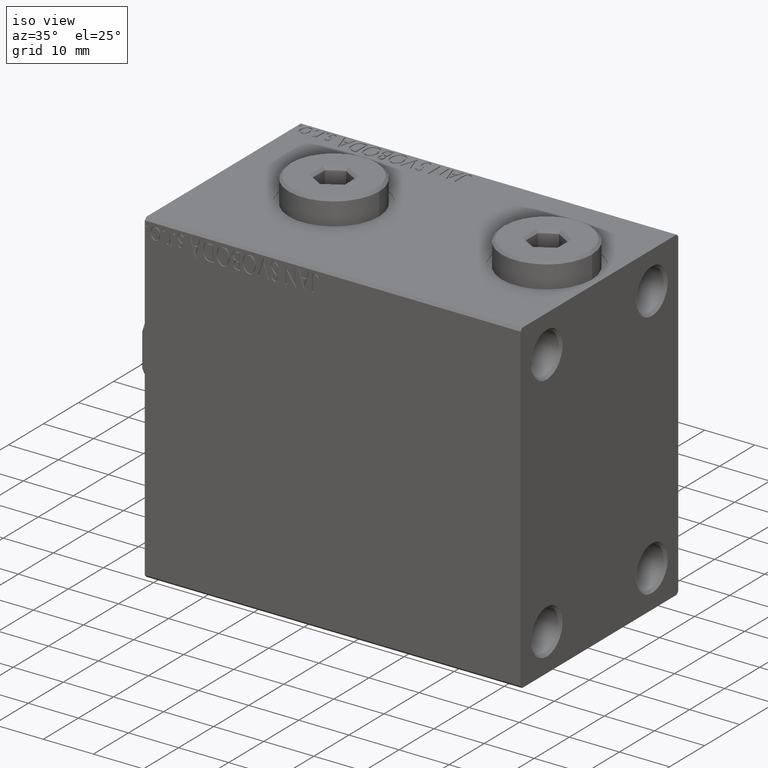
[diagram: clean part render]
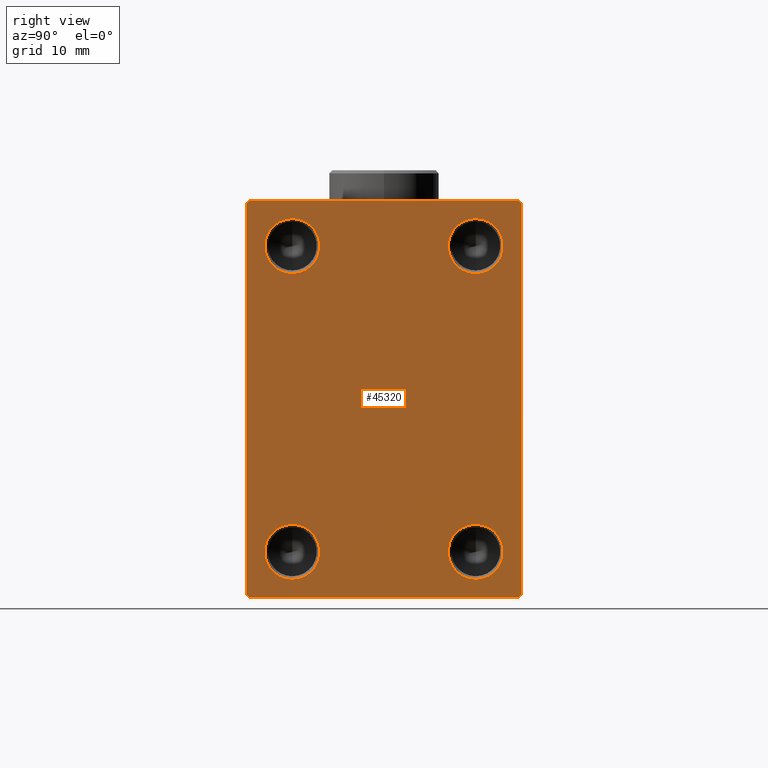
[diagram: tour spotlight — one face highlighted and labeled with its STEP entity id]
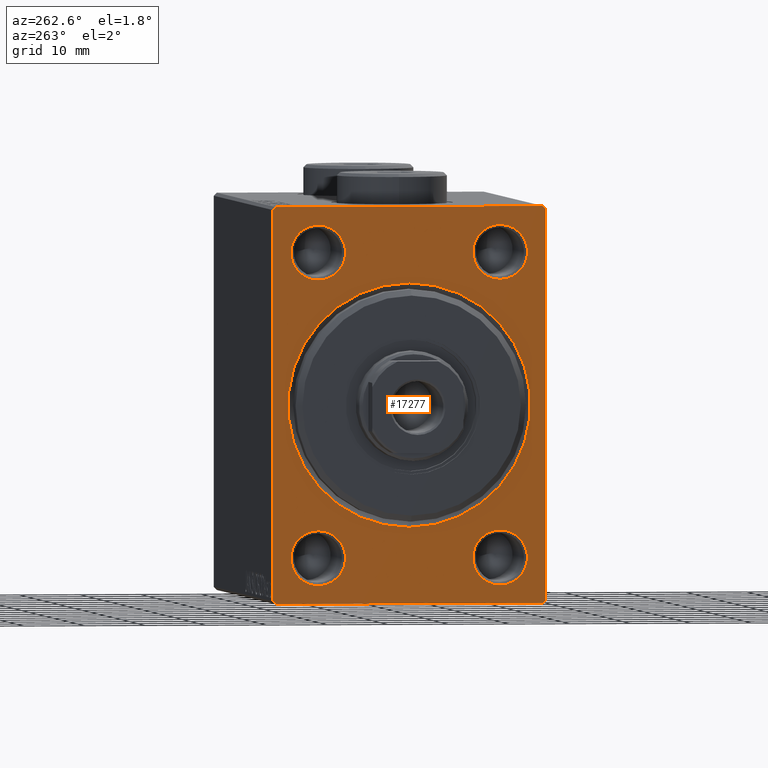
[diagram: tour spotlight — one face highlighted and labeled with its STEP entity id]
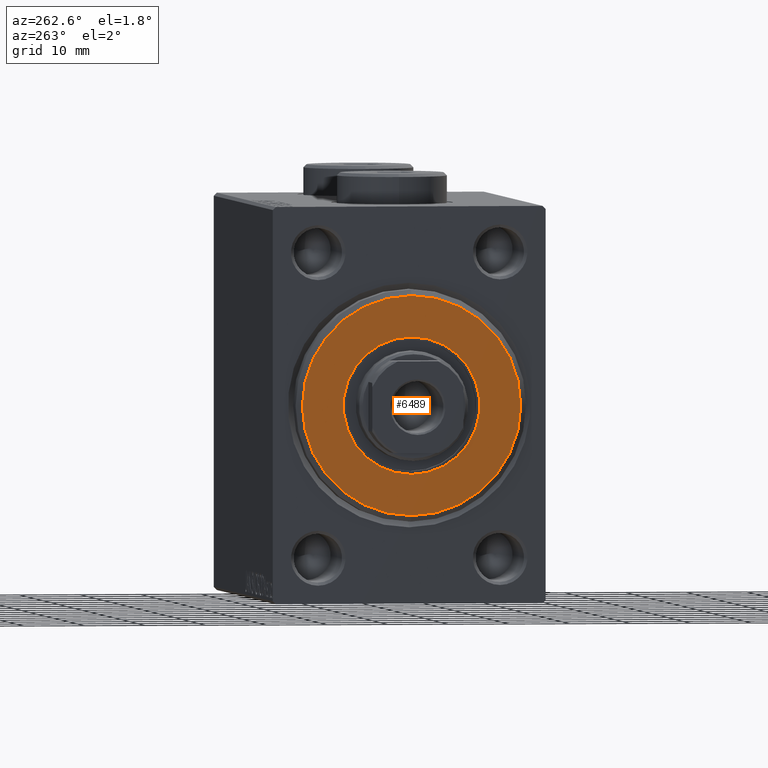
[diagram: tour spotlight — one face highlighted and labeled with its STEP entity id]
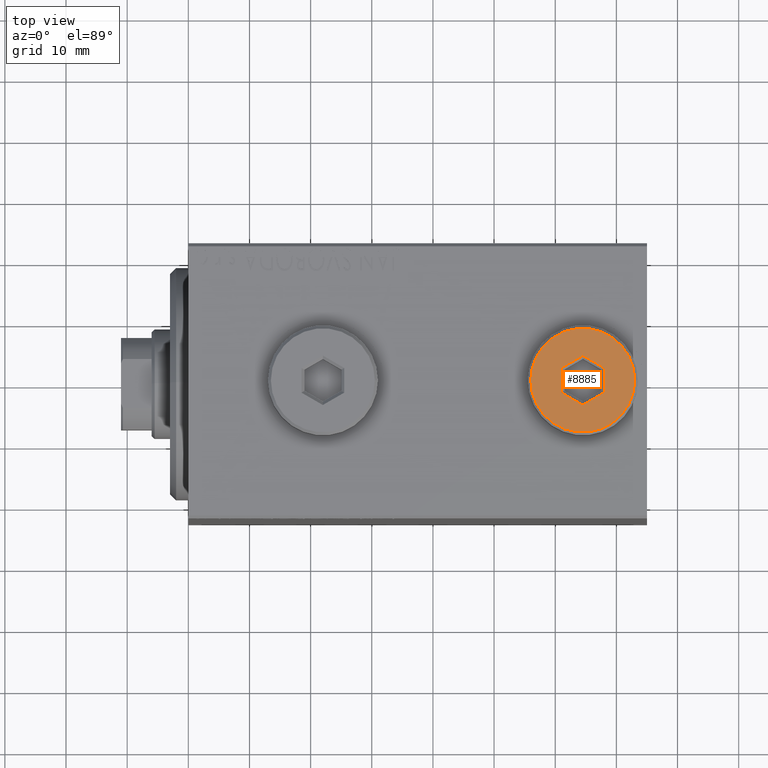
[diagram: tour spotlight — one face highlighted and labeled with its STEP entity id]
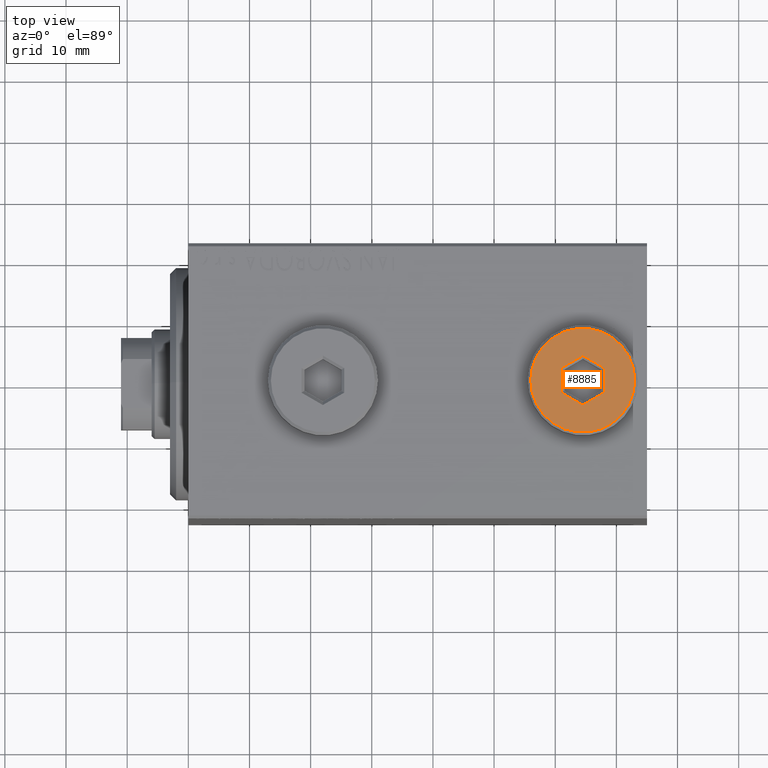
[diagram: tour spotlight — one face highlighted and labeled with its STEP entity id]
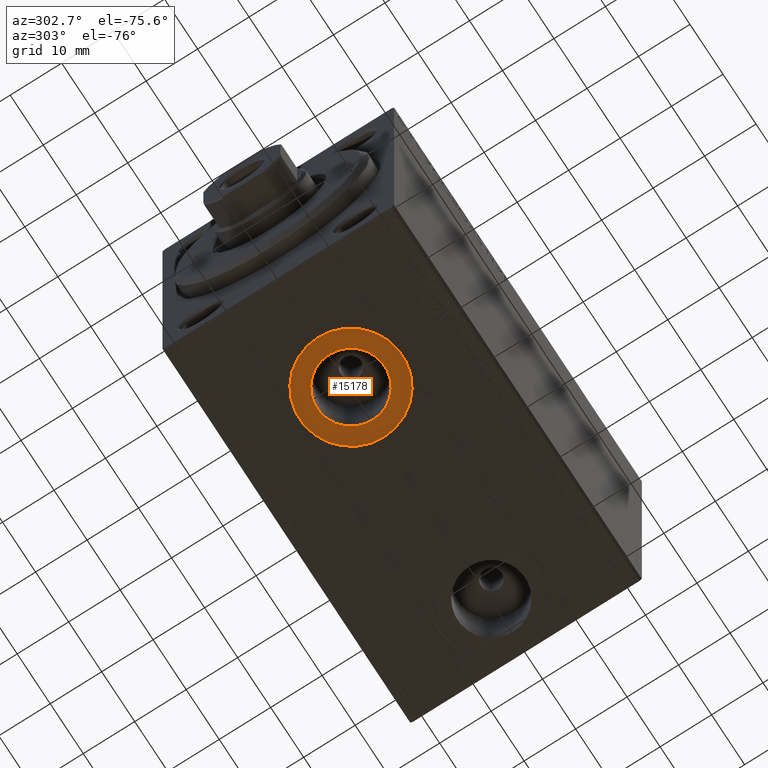
[diagram: tour spotlight — one face highlighted and labeled with its STEP entity id]
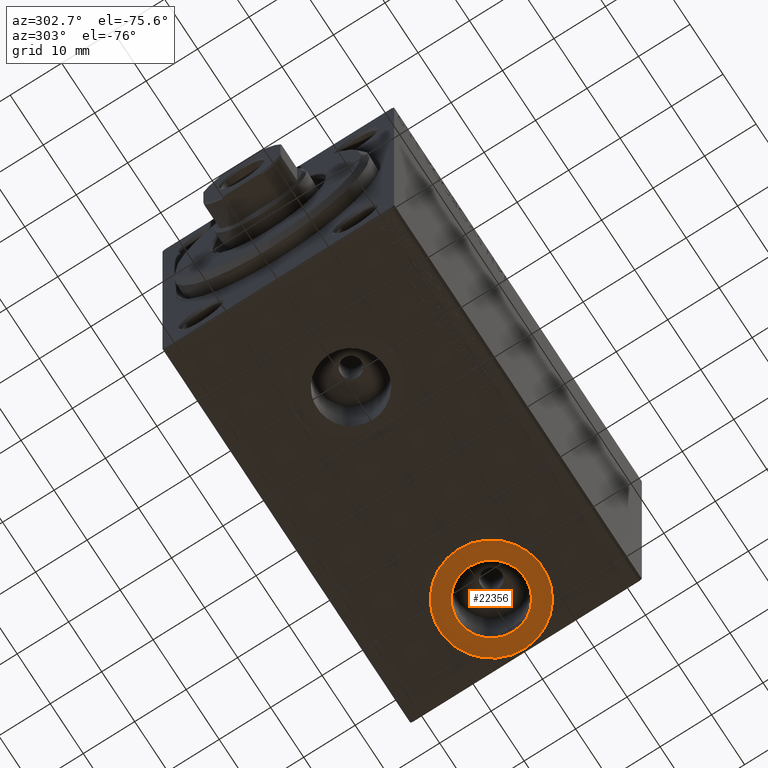
[diagram: tour spotlight — one face highlighted and labeled with its STEP entity id]
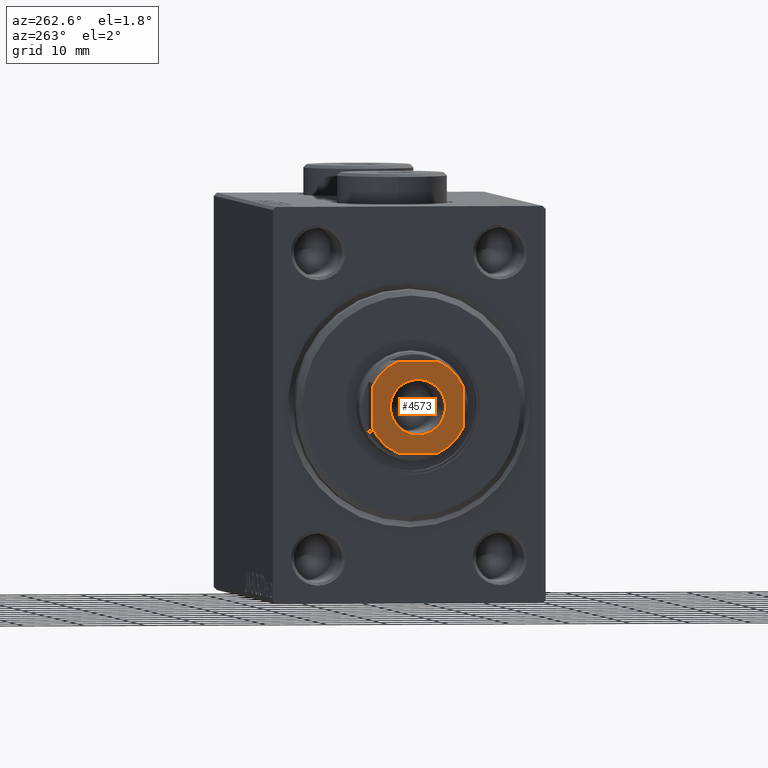
[diagram: tour spotlight — one face highlighted and labeled with its STEP entity id]
A machine part: a face-by-face anatomy tour. The part has 935 B-rep faces; the first image is the clean iso view, then the 8 largest visible faces are spotlighted one at a time (largest first), each with its STEP entity span.

Face 1 — right view, entity #45320. In plain terms, the highlighted planar face has unit normal (1, 0, 0).
Definition (entity closure, byte-faithful):
#220 = LINE ( 'NONE', #42635, #7046 ) ;
#296 = CARTESIAN_POINT ( 'NONE',  ( 75.00000000000000000, 15.00000000000000178, -25.00000000000000000 ) ) ;
#327 = EDGE_LOOP ( 'NONE', ( #19916, #19727, #20350, #24115, #30511, #34439, #5762, #20377 ) ) ;
#532 = CARTESIAN_POINT ( 'NONE',  ( 75.00000000000000000, 15.00000000000000178, 20.49999999999998579 ) ) ;
#587 = AXIS2_PLACEMENT_3D ( 'NONE', #21493, #14580, #17365 ) ;
#998 = DIRECTION ( 'NONE',  ( 0.000000000000000000, 0.000000000000000000, -1.000000000000000000 ) ) ;
#1441 = CARTESIAN_POINT ( 'NONE',  ( 75.00000000000000000, -15.00000000000000000, -25.00000000000000000 ) ) ;
#1638 = CARTESIAN_POINT ( 'NONE',  ( 75.00000000000000000, -27.25000000000015632, -27.24999999999977973 ) ) ;
#2102 = CARTESIAN_POINT ( 'NONE',  ( 75.00000000000000000, -15.00000000000000000, 20.50000000000001776 ) ) ;
#2586 = CARTESIAN_POINT ( 'NONE',  ( 75.00000000000000000, -21.99999999999997868, 32.49999999999998579 ) ) ;
#2688 = VERTEX_POINT ( 'NONE', #31999 ) ;
#2927 = CIRCLE ( 'NONE', #22880, 4.500000000000017764 ) ;
#3093 = LINE ( 'NONE', #17141, #44184 ) ;
#3355 = EDGE_LOOP ( 'NONE', ( #13514, #8745 ) ) ;
#3480 = ORIENTED_EDGE ( 'NONE', *, *, #41630, .F. ) ;
#3988 = FACE_BOUND ( 'NONE', #13575, .T. ) ;
#4278 = LINE ( 'NONE', #7271, #9088 ) ;
#4792 = CARTESIAN_POINT ( 'NONE',  ( 75.00000000000000000, 15.00000000000000178, -20.49999999999998579 ) ) ;
#4814 = VECTOR ( 'NONE', #10726, 1000.000000000000000 ) ;
#4973 = VERTEX_POINT ( 'NONE', #40390 ) ;
#4992 = CIRCLE ( 'NONE', #36652, 4.499999999999990230 ) ;
#5567 = AXIS2_PLACEMENT_3D ( 'NONE', #15856, #39862, #25999 ) ;
#5762 = ORIENTED_EDGE ( 'NONE', *, *, #24552, .T. ) ;
#6866 = CARTESIAN_POINT ( 'NONE',  ( 75.00000000000000000, -22.49999999999999289, 31.99999999999998579 ) ) ;
#6905 = DIRECTION ( 'NONE',  ( 0.000000000000000000, 1.000000000000000000, 0.000000000000000000 ) ) ;
#6988 = PLANE ( 'NONE',  #27925 ) ;
#7046 = VECTOR ( 'NONE', #6905, 1000.000000000000000 ) ;
#7271 = CARTESIAN_POINT ( 'NONE',  ( 75.00000000000000000, 27.24999999999969447, 27.25000000000044764 ) ) ;
#7413 = EDGE_CURVE ( 'NONE', #23906, #36593, #21330, .T. ) ;
#7817 = VERTEX_POINT ( 'NONE', #20054 ) ;
#7891 = DIRECTION ( 'NONE',  ( 0.000000000000000000, -1.000000000000000000, -1.541976423090495633E-16 ) ) ;
#7954 = EDGE_CURVE ( 'NONE', #24303, #23906, #220, .T. ) ;
#8042 = EDGE_CURVE ( 'NONE', #16100, #18061, #12170, .T. ) ;
#8081 = CIRCLE ( 'NONE', #40469, 4.499999999999990230 ) ;
#8200 = DIRECTION ( 'NONE',  ( 0.000000000000000000, -1.067522139062650425E-16, 1.000000000000000000 ) ) ;
#8473 = CARTESIAN_POINT ( 'NONE',  ( 75.00000000000000000, 15.00000000000000178, -29.50000000000001421 ) ) ;
#8745 = ORIENTED_EDGE ( 'NONE', *, *, #40685, .F. ) ;
#9012 = ORIENTED_EDGE ( 'NONE', *, *, #19545, .F. ) ;
#9060 = AXIS2_PLACEMENT_3D ( 'NONE', #296, #39711, #15268 ) ;
#9088 = VECTOR ( 'NONE', #11194, 1000.000000000000000 ) ;
#9231 = LINE ( 'NONE', #1638, #33922 ) ;
#9342 = ORIENTED_EDGE ( 'NONE', *, *, #22247, .F. ) ;
#9397 = CARTESIAN_POINT ( 'NONE',  ( 75.00000000000000000, -22.00000000000000711, -32.50000000000000711 ) ) ;
#10726 = DIRECTION ( 'NONE',  ( -0.000000000000000000, 0.7071067811865378028, 0.7071067811865573427 ) ) ;
#11194 = DIRECTION ( 'NONE',  ( -0.000000000000000000, -0.7071067811865573427, 0.7071067811865378028 ) ) ;
#11309 = AXIS2_PLACEMENT_3D ( 'NONE', #1441, #29566, #43626 ) ;
#11669 = ORIENTED_EDGE ( 'NONE', *, *, #27508, .F. ) ;
#11878 = CARTESIAN_POINT ( 'NONE',  ( 75.00000000000000000, 22.50000000000000000, 32.00000000000000711 ) ) ;
#12015 = CARTESIAN_POINT ( 'NONE',  ( 75.00000000000000000, 22.50000000000000711, -32.00000000000000711 ) ) ;
#12170 = CIRCLE ( 'NONE', #5567, 4.500000000000017764 ) ;
#12644 = DIRECTION ( 'NONE',  ( 1.000000000000000000, -0.000000000000000000, -0.000000000000000000 ) ) ;
#12666 = VERTEX_POINT ( 'NONE', #2102 ) ;
#13477 = VECTOR ( 'NONE', #28343, 1000.000000000000114 ) ;
#13514 = ORIENTED_EDGE ( 'NONE', *, *, #8042, .F. ) ;
#13575 = EDGE_LOOP ( 'NONE', ( #11669, #22582 ) ) ;
#13916 = DIRECTION ( 'NONE',  ( 0.000000000000000000, 0.000000000000000000, -1.000000000000000000 ) ) ;
#14077 = VERTEX_POINT ( 'NONE', #2586 ) ;
#14286 = CARTESIAN_POINT ( 'NONE',  ( 75.00000000000000000, -27.24999999999998934, 27.24999999999998934 ) ) ;
#14303 = LINE ( 'NONE', #38527, #17506 ) ;
#14403 = CARTESIAN_POINT ( 'NONE',  ( 75.00000000000000000, 15.00000000000000178, 29.50000000000001421 ) ) ;
#14480 = EDGE_LOOP ( 'NONE', ( #9012, #3480 ) ) ;
#14580 = DIRECTION ( 'NONE',  ( 1.000000000000000000, -0.000000000000000000, -0.000000000000000000 ) ) ;
#15129 = LINE ( 'NONE', #43030, #18318 ) ;
#15268 = DIRECTION ( 'NONE',  ( 0.000000000000000000, 0.000000000000000000, -1.000000000000000000 ) ) ;
#15856 = CARTESIAN_POINT ( 'NONE',  ( 75.00000000000000000, 15.00000000000000178, -25.00000000000000000 ) ) ;
#16100 = VERTEX_POINT ( 'NONE', #4792 ) ;
#16384 = CARTESIAN_POINT ( 'NONE',  ( 75.00000000000000000, -15.00000000000000000, -20.50000000000001776 ) ) ;
#16620 = CARTESIAN_POINT ( 'NONE',  ( 75.00000000000000000, -15.00000000000000000, -25.00000000000000000 ) ) ;
#17141 = CARTESIAN_POINT ( 'NONE',  ( 75.00000000000000000, 22.50000000000000000, 32.49999999999999289 ) ) ;
#17365 = DIRECTION ( 'NONE',  ( 0.000000000000000000, 0.000000000000000000, -1.000000000000000000 ) ) ;
#17425 = CARTESIAN_POINT ( 'NONE',  ( 75.00000000000000000, 27.25000000000032330, -27.24999999999957012 ) ) ;
#17506 = VECTOR ( 'NONE', #28360, 1000.000000000000000 ) ;
#18061 = VERTEX_POINT ( 'NONE', #8473 ) ;
#18318 = VECTOR ( 'NONE', #8200, 1000.000000000000000 ) ;
#18509 = CARTESIAN_POINT ( 'NONE',  ( 75.00000000000000000, 15.00000000000000178, 25.00000000000000000 ) ) ;
#19545 = EDGE_CURVE ( 'NONE', #37550, #4973, #40271, .T. ) ;
#19727 = ORIENTED_EDGE ( 'NONE', *, *, #40072, .T. ) ;
#19916 = ORIENTED_EDGE ( 'NONE', *, *, #28937, .T. ) ;
#20054 = CARTESIAN_POINT ( 'NONE',  ( 75.00000000000000000, -22.49999999999999289, -32.00000000000001421 ) ) ;
#20350 = ORIENTED_EDGE ( 'NONE', *, *, #22543, .T. ) ;
#20377 = ORIENTED_EDGE ( 'NONE', *, *, #41250, .T. ) ;
#20476 = DIRECTION ( 'NONE',  ( 0.000000000000000000, 0.000000000000000000, -1.000000000000000000 ) ) ;
#21330 = LINE ( 'NONE', #17425, #4814 ) ;
#21493 = CARTESIAN_POINT ( 'NONE',  ( 75.00000000000000000, 15.00000000000000178, 25.00000000000000000 ) ) ;
#22247 = EDGE_CURVE ( 'NONE', #25499, #41536, #44751, .T. ) ;
#22543 = EDGE_CURVE ( 'NONE', #27627, #7817, #14303, .T. ) ;
#22554 = CARTESIAN_POINT ( 'NONE',  ( 75.00000000000000000, -15.00000000000000000, 25.00000000000000000 ) ) ;
#22582 = ORIENTED_EDGE ( 'NONE', *, *, #22827, .F. ) ;
#22827 = EDGE_CURVE ( 'NONE', #12666, #2688, #4992, .T. ) ;
#22880 = AXIS2_PLACEMENT_3D ( 'NONE', #18509, #32576, #998 ) ;
#23881 = CARTESIAN_POINT ( 'NONE',  ( 75.00000000000000000, 22.00000000000000711, -32.50000000000000711 ) ) ;
#23906 = VERTEX_POINT ( 'NONE', #23881 ) ;
#24115 = ORIENTED_EDGE ( 'NONE', *, *, #33758, .T. ) ;
#24303 = VERTEX_POINT ( 'NONE', #9397 ) ;
#24504 = FACE_OUTER_BOUND ( 'NONE', #327, .T. ) ;
#24552 = EDGE_CURVE ( 'NONE', #36593, #31384, #15129, .T. ) ;
#25282 = CIRCLE ( 'NONE', #11309, 4.499999999999990230 ) ;
#25499 = VERTEX_POINT ( 'NONE', #14403 ) ;
#25999 = DIRECTION ( 'NONE',  ( 0.000000000000000000, 0.000000000000000000, -1.000000000000000000 ) ) ;
#27228 = DIRECTION ( 'NONE',  ( 1.000000000000000000, -0.000000000000000000, -0.000000000000000000 ) ) ;
#27508 = EDGE_CURVE ( 'NONE', #2688, #12666, #8081, .T. ) ;
#27627 = VERTEX_POINT ( 'NONE', #6866 ) ;
#27687 = DIRECTION ( 'NONE',  ( 0.000000000000000000, 0.000000000000000000, -1.000000000000000000 ) ) ;
#27925 = AXIS2_PLACEMENT_3D ( 'NONE', #31663, #38815, #13916 ) ;
#28343 = DIRECTION ( 'NONE',  ( 0.000000000000000000, -0.7071067811865474617, -0.7071067811865474617 ) ) ;
#28360 = DIRECTION ( 'NONE',  ( 0.000000000000000000, 0.000000000000000000, -1.000000000000000000 ) ) ;
#28419 = FACE_BOUND ( 'NONE', #3355, .T. ) ;
#28647 = FACE_BOUND ( 'NONE', #14480, .T. ) ;
#28937 = EDGE_CURVE ( 'NONE', #41182, #14077, #3093, .T. ) ;
#29566 = DIRECTION ( 'NONE',  ( 1.000000000000000000, -0.000000000000000000, -0.000000000000000000 ) ) ;
#30484 = EDGE_CURVE ( 'NONE', #41536, #25499, #2927, .T. ) ;
#30511 = ORIENTED_EDGE ( 'NONE', *, *, #7954, .T. ) ;
#31349 = LINE ( 'NONE', #14286, #13477 ) ;
#31384 = VERTEX_POINT ( 'NONE', #11878 ) ;
#31663 = CARTESIAN_POINT ( 'NONE',  ( 75.00000000000000000, 0.000000000000000000, 0.000000000000000000 ) ) ;
#31999 = CARTESIAN_POINT ( 'NONE',  ( 75.00000000000000000, -15.00000000000000000, 29.49999999999998579 ) ) ;
#32110 = FACE_BOUND ( 'NONE', #44932, .T. ) ;
#32576 = DIRECTION ( 'NONE',  ( 1.000000000000000000, -0.000000000000000000, -0.000000000000000000 ) ) ;
#32629 = CIRCLE ( 'NONE', #9060, 4.500000000000017764 ) ;
#33758 = EDGE_CURVE ( 'NONE', #7817, #24303, #9231, .T. ) ;
#33922 = VECTOR ( 'NONE', #37368, 1000.000000000000000 ) ;
#34439 = ORIENTED_EDGE ( 'NONE', *, *, #7413, .T. ) ;
#35000 = CARTESIAN_POINT ( 'NONE',  ( 75.00000000000000000, -15.00000000000000000, 25.00000000000000000 ) ) ;
#36593 = VERTEX_POINT ( 'NONE', #12015 ) ;
#36652 = AXIS2_PLACEMENT_3D ( 'NONE', #35000, #42371, #20476 ) ;
#37368 = DIRECTION ( 'NONE',  ( -0.000000000000000000, 0.7071067811865426878, -0.7071067811865524577 ) ) ;
#37550 = VERTEX_POINT ( 'NONE', #16384 ) ;
#37958 = CARTESIAN_POINT ( 'NONE',  ( 75.00000000000000000, 22.00000000000000000, 32.49999999999999289 ) ) ;
#38527 = CARTESIAN_POINT ( 'NONE',  ( 75.00000000000000000, -22.49999999999999289, 32.49999999999998579 ) ) ;
#38815 = DIRECTION ( 'NONE',  ( 1.000000000000000000, 0.000000000000000000, 0.000000000000000000 ) ) ;
#39711 = DIRECTION ( 'NONE',  ( 1.000000000000000000, -0.000000000000000000, -0.000000000000000000 ) ) ;
#39862 = DIRECTION ( 'NONE',  ( 1.000000000000000000, -0.000000000000000000, -0.000000000000000000 ) ) ;
#40072 = EDGE_CURVE ( 'NONE', #14077, #27627, #31349, .T. ) ;
#40240 = ORIENTED_EDGE ( 'NONE', *, *, #30484, .F. ) ;
#40271 = CIRCLE ( 'NONE', #41733, 4.499999999999990230 ) ;
#40390 = CARTESIAN_POINT ( 'NONE',  ( 75.00000000000000000, -15.00000000000000000, -29.49999999999998579 ) ) ;
#40469 = AXIS2_PLACEMENT_3D ( 'NONE', #22554, #12644, #44455 ) ;
#40685 = EDGE_CURVE ( 'NONE', #18061, #16100, #32629, .T. ) ;
#41182 = VERTEX_POINT ( 'NONE', #37958 ) ;
#41250 = EDGE_CURVE ( 'NONE', #31384, #41182, #4278, .T. ) ;
#41536 = VERTEX_POINT ( 'NONE', #532 ) ;
#41630 = EDGE_CURVE ( 'NONE', #4973, #37550, #25282, .T. ) ;
#41733 = AXIS2_PLACEMENT_3D ( 'NONE', #16620, #27228, #27687 ) ;
#42371 = DIRECTION ( 'NONE',  ( 1.000000000000000000, -0.000000000000000000, -0.000000000000000000 ) ) ;
#42635 = CARTESIAN_POINT ( 'NONE',  ( 75.00000000000000000, -22.49999999999999289, -32.50000000000000711 ) ) ;
#43030 = CARTESIAN_POINT ( 'NONE',  ( 75.00000000000000000, 22.50000000000000711, -32.50000000000000711 ) ) ;
#43626 = DIRECTION ( 'NONE',  ( 0.000000000000000000, 0.000000000000000000, -1.000000000000000000 ) ) ;
#44184 = VECTOR ( 'NONE', #7891, 1000.000000000000000 ) ;
#44455 = DIRECTION ( 'NONE',  ( 0.000000000000000000, 0.000000000000000000, -1.000000000000000000 ) ) ;
#44751 = CIRCLE ( 'NONE', #587, 4.500000000000017764 ) ;
#44932 = EDGE_LOOP ( 'NONE', ( #9342, #40240 ) ) ;
#45320 = ADVANCED_FACE ( 'NONE', ( #32110, #3988, #28647, #28419, #24504 ), #6988, .T. ) ;

Face 2 — auxiliary view, entity #17277. In plain terms, the highlighted planar face has unit normal (1, 0, 0).
Definition (entity closure, byte-faithful):
#533 = EDGE_LOOP ( 'NONE', ( #7134, #40319, #19664, #44098, #21765, #2775, #45369, #15750 ) ) ;
#1034 = EDGE_CURVE ( 'NONE', #25867, #18890, #19194, .T. ) ;
#1038 = VECTOR ( 'NONE', #44761, 1000.000000000000000 ) ;
#1148 = EDGE_CURVE ( 'NONE', #36607, #30330, #19357, .T. ) ;
#1184 = ORIENTED_EDGE ( 'NONE', *, *, #1148, .T. ) ;
#1676 = DIRECTION ( 'NONE',  ( 0.000000000000000000, -1.000000000000000000, -1.541976423090495633E-16 ) ) ;
#1759 = EDGE_CURVE ( 'NONE', #7427, #32333, #4628, .T. ) ;
#2399 = DIRECTION ( 'NONE',  ( 1.000000000000000000, 0.000000000000000000, 0.000000000000000000 ) ) ;
#2571 = DIRECTION ( 'NONE',  ( 0.000000000000000000, 0.000000000000000000, -1.000000000000000000 ) ) ;
#2775 = ORIENTED_EDGE ( 'NONE', *, *, #37721, .T. ) ;
#3225 = AXIS2_PLACEMENT_3D ( 'NONE', #35800, #35573, #42949 ) ;
#3295 = EDGE_CURVE ( 'NONE', #39494, #20016, #13638, .T. ) ;
#3395 = AXIS2_PLACEMENT_3D ( 'NONE', #43470, #4069, #21809 ) ;
#3749 = CIRCLE ( 'NONE', #8890, 4.499999999999990230 ) ;
#3752 = CARTESIAN_POINT ( 'NONE',  ( 0.000000000000000000, 22.50000000000000000, 32.00000000000000711 ) ) ;
#3969 = DIRECTION ( 'NONE',  ( 1.000000000000000000, 0.000000000000000000, 0.000000000000000000 ) ) ;
#4069 = DIRECTION ( 'NONE',  ( 1.000000000000000000, 0.000000000000000000, 0.000000000000000000 ) ) ;
#4351 = EDGE_CURVE ( 'NONE', #11346, #22256, #32122, .T. ) ;
#4628 = CIRCLE ( 'NONE', #10514, 4.500000000000017764 ) ;
#4827 = CARTESIAN_POINT ( 'NONE',  ( 0.000000000000000000, 22.00000000000000000, 32.49999999999999289 ) ) ;
#4951 = EDGE_LOOP ( 'NONE', ( #15537, #17730 ) ) ;
#4995 = VERTEX_POINT ( 'NONE', #18953 ) ;
#5052 = VERTEX_POINT ( 'NONE', #8340 ) ;
#6131 = AXIS2_PLACEMENT_3D ( 'NONE', #33982, #2399, #21501 ) ;
#6892 = CARTESIAN_POINT ( 'NONE',  ( 0.000000000000000000, 15.00000000000000178, -25.00000000000000000 ) ) ;
#7134 = ORIENTED_EDGE ( 'NONE', *, *, #4351, .F. ) ;
#7236 = CARTESIAN_POINT ( 'NONE',  ( 0.000000000000000000, 15.00000000000000178, 25.00000000000000000 ) ) ;
#7257 = VERTEX_POINT ( 'NONE', #44406 ) ;
#7427 = VERTEX_POINT ( 'NONE', #11184 ) ;
#7517 = FACE_BOUND ( 'NONE', #41464, .T. ) ;
#7914 = DIRECTION ( 'NONE',  ( 1.000000000000000000, 0.000000000000000000, 0.000000000000000000 ) ) ;
#8074 = CARTESIAN_POINT ( 'NONE',  ( 0.000000000000000000, -22.49999999999999289, 31.99999999999998579 ) ) ;
#8120 = ORIENTED_EDGE ( 'NONE', *, *, #1759, .T. ) ;
#8302 = EDGE_CURVE ( 'NONE', #4995, #5052, #15148, .T. ) ;
#8340 = CARTESIAN_POINT ( 'NONE',  ( 0.000000000000000000, 0.000000000000000000, 19.99999999999998934 ) ) ;
#8698 = VERTEX_POINT ( 'NONE', #32827 ) ;
#8890 = AXIS2_PLACEMENT_3D ( 'NONE', #44991, #41776, #41545 ) ;
#9421 = ORIENTED_EDGE ( 'NONE', *, *, #36428, .T. ) ;
#9724 = CARTESIAN_POINT ( 'NONE',  ( 0.000000000000000000, -15.00000000000000000, 20.50000000000001066 ) ) ;
#10171 = DIRECTION ( 'NONE',  ( 1.000000000000000000, 0.000000000000000000, 0.000000000000000000 ) ) ;
#10317 = DIRECTION ( 'NONE',  ( 1.000000000000000000, 0.000000000000000000, 0.000000000000000000 ) ) ;
#10514 = AXIS2_PLACEMENT_3D ( 'NONE', #7236, #7914, #21975 ) ;
#11136 = ORIENTED_EDGE ( 'NONE', *, *, #41482, .T. ) ;
#11184 = CARTESIAN_POINT ( 'NONE',  ( 0.000000000000000000, 15.00000000000000178, 29.50000000000001776 ) ) ;
#11346 = VERTEX_POINT ( 'NONE', #45401 ) ;
#11410 = CARTESIAN_POINT ( 'NONE',  ( 0.000000000000000000, -22.00000000000000711, -32.50000000000000711 ) ) ;
#12410 = LINE ( 'NONE', #4827, #30090 ) ;
#12555 = DIRECTION ( 'NONE',  ( 0.000000000000000000, -0.7071067811865378028, -0.7071067811865573427 ) ) ;
#13006 = LINE ( 'NONE', #26366, #45065 ) ;
#13430 = EDGE_CURVE ( 'NONE', #11346, #18890, #22364, .T. ) ;
#13638 = LINE ( 'NONE', #27464, #1038 ) ;
#13839 = DIRECTION ( 'NONE',  ( 1.000000000000000000, 0.000000000000000000, 0.000000000000000000 ) ) ;
#14073 = LINE ( 'NONE', #45193, #19675 ) ;
#14106 = AXIS2_PLACEMENT_3D ( 'NONE', #41795, #3969, #34872 ) ;
#14200 = DIRECTION ( 'NONE',  ( 0.000000000000000000, 0.000000000000000000, -1.000000000000000000 ) ) ;
#14421 = DIRECTION ( 'NONE',  ( 1.000000000000000000, 0.000000000000000000, 0.000000000000000000 ) ) ;
#15148 = CIRCLE ( 'NONE', #26143, 19.99999999999998934 ) ;
#15355 = CIRCLE ( 'NONE', #35236, 4.500000000000017764 ) ;
#15459 = EDGE_LOOP ( 'NONE', ( #8120, #37677 ) ) ;
#15537 = ORIENTED_EDGE ( 'NONE', *, *, #30688, .T. ) ;
#15750 = ORIENTED_EDGE ( 'NONE', *, *, #26450, .T. ) ;
#17161 = CIRCLE ( 'NONE', #6131, 4.499999999999990230 ) ;
#17277 = ADVANCED_FACE ( 'NONE', ( #33090, #18349, #32194, #39116, #7517, #35653 ), #29413, .F. ) ;
#17724 = DIRECTION ( 'NONE',  ( 0.000000000000000000, 0.000000000000000000, -1.000000000000000000 ) ) ;
#17730 = ORIENTED_EDGE ( 'NONE', *, *, #19503, .T. ) ;
#17783 = CIRCLE ( 'NONE', #14106, 19.99999999999998934 ) ;
#18126 = VECTOR ( 'NONE', #22139, 1000.000000000000114 ) ;
#18349 = FACE_BOUND ( 'NONE', #4951, .T. ) ;
#18890 = VERTEX_POINT ( 'NONE', #30641 ) ;
#18910 = AXIS2_PLACEMENT_3D ( 'NONE', #23994, #10171, #2571 ) ;
#18953 = CARTESIAN_POINT ( 'NONE',  ( 0.000000000000000000, 2.449293598294705330E-15, -19.99999999999998934 ) ) ;
#19194 = LINE ( 'NONE', #30644, #45127 ) ;
#19267 = ORIENTED_EDGE ( 'NONE', *, *, #24916, .T. ) ;
#19357 = CIRCLE ( 'NONE', #25244, 4.500000000000017764 ) ;
#19384 = CARTESIAN_POINT ( 'NONE',  ( 0.000000000000000000, 15.00000000000000178, -29.50000000000001776 ) ) ;
#19503 = EDGE_CURVE ( 'NONE', #7257, #30956, #20395, .T. ) ;
#19568 = DIRECTION ( 'NONE',  ( -0.000000000000000000, 0.7071067811865573427, -0.7071067811865378028 ) ) ;
#19664 = ORIENTED_EDGE ( 'NONE', *, *, #1034, .F. ) ;
#19675 = VECTOR ( 'NONE', #34359, 1000.000000000000000 ) ;
#20016 = VERTEX_POINT ( 'NONE', #28765 ) ;
#20395 = CIRCLE ( 'NONE', #18910, 4.499999999999990230 ) ;
#21364 = CARTESIAN_POINT ( 'NONE',  ( 0.000000000000000000, 0.000000000000000000, 0.000000000000000000 ) ) ;
#21501 = DIRECTION ( 'NONE',  ( 0.000000000000000000, 0.000000000000000000, -1.000000000000000000 ) ) ;
#21510 = CARTESIAN_POINT ( 'NONE',  ( 0.000000000000000000, 15.00000000000000178, -20.49999999999998224 ) ) ;
#21626 = EDGE_CURVE ( 'NONE', #33685, #37419, #14073, .T. ) ;
#21765 = ORIENTED_EDGE ( 'NONE', *, *, #21626, .F. ) ;
#21809 = DIRECTION ( 'NONE',  ( 0.000000000000000000, 0.000000000000000000, -1.000000000000000000 ) ) ;
#21975 = DIRECTION ( 'NONE',  ( 0.000000000000000000, 0.000000000000000000, -1.000000000000000000 ) ) ;
#22139 = DIRECTION ( 'NONE',  ( -0.000000000000000000, 0.7071067811865474617, 0.7071067811865474617 ) ) ;
#22256 = VERTEX_POINT ( 'NONE', #28638 ) ;
#22364 = LINE ( 'NONE', #8074, #18126 ) ;
#23478 = VECTOR ( 'NONE', #43216, 1000.000000000000000 ) ;
#23994 = CARTESIAN_POINT ( 'NONE',  ( 0.000000000000000000, -15.00000000000000000, -25.00000000000000000 ) ) ;
#24407 = DIRECTION ( 'NONE',  ( 1.000000000000000000, 0.000000000000000000, 0.000000000000000000 ) ) ;
#24916 = EDGE_CURVE ( 'NONE', #30330, #36607, #15355, .T. ) ;
#24965 = CARTESIAN_POINT ( 'NONE',  ( 0.000000000000000000, -22.49999999999999289, 32.49999999999998579 ) ) ;
#24981 = CARTESIAN_POINT ( 'NONE',  ( 0.000000000000000000, -22.00000000000000711, -32.50000000000000711 ) ) ;
#25015 = CIRCLE ( 'NONE', #30920, 4.500000000000017764 ) ;
#25244 = AXIS2_PLACEMENT_3D ( 'NONE', #6892, #24407, #17724 ) ;
#25867 = VERTEX_POINT ( 'NONE', #28527 ) ;
#26143 = AXIS2_PLACEMENT_3D ( 'NONE', #21364, #10317, #31515 ) ;
#26366 = CARTESIAN_POINT ( 'NONE',  ( 0.000000000000000000, 22.50000000000000711, -32.00000000000000711 ) ) ;
#26450 = EDGE_CURVE ( 'NONE', #39494, #22256, #42996, .T. ) ;
#26882 = ORIENTED_EDGE ( 'NONE', *, *, #8302, .T. ) ;
#27464 = CARTESIAN_POINT ( 'NONE',  ( 0.000000000000000000, -22.49999999999999289, -32.50000000000000711 ) ) ;
#28527 = CARTESIAN_POINT ( 'NONE',  ( 0.000000000000000000, 22.00000000000000000, 32.49999999999999289 ) ) ;
#28638 = CARTESIAN_POINT ( 'NONE',  ( 0.000000000000000000, -22.49999999999999289, -32.00000000000001421 ) ) ;
#28765 = CARTESIAN_POINT ( 'NONE',  ( 0.000000000000000000, 22.00000000000000711, -32.50000000000000711 ) ) ;
#29413 = PLANE ( 'NONE',  #3395 ) ;
#29580 = CARTESIAN_POINT ( 'NONE',  ( 0.000000000000000000, 15.00000000000000178, 20.49999999999998224 ) ) ;
#30090 = VECTOR ( 'NONE', #19568, 1000.000000000000000 ) ;
#30330 = VERTEX_POINT ( 'NONE', #21510 ) ;
#30641 = CARTESIAN_POINT ( 'NONE',  ( 0.000000000000000000, -21.99999999999997868, 32.49999999999998579 ) ) ;
#30644 = CARTESIAN_POINT ( 'NONE',  ( 0.000000000000000000, 22.50000000000000000, 32.49999999999999289 ) ) ;
#30688 = EDGE_CURVE ( 'NONE', #30956, #7257, #3749, .T. ) ;
#30920 = AXIS2_PLACEMENT_3D ( 'NONE', #32172, #14421, #14200 ) ;
#30956 = VERTEX_POINT ( 'NONE', #37567 ) ;
#31515 = DIRECTION ( 'NONE',  ( 0.000000000000000000, 0.000000000000000000, -1.000000000000000000 ) ) ;
#31877 = EDGE_CURVE ( 'NONE', #32333, #7427, #25015, .T. ) ;
#31903 = CIRCLE ( 'NONE', #3225, 4.499999999999990230 ) ;
#31964 = VECTOR ( 'NONE', #39052, 1000.000000000000000 ) ;
#32122 = LINE ( 'NONE', #24965, #31964 ) ;
#32172 = CARTESIAN_POINT ( 'NONE',  ( 0.000000000000000000, 15.00000000000000178, 25.00000000000000000 ) ) ;
#32194 = FACE_BOUND ( 'NONE', #42969, .T. ) ;
#32273 = CARTESIAN_POINT ( 'NONE',  ( 0.000000000000000000, 15.00000000000000178, -25.00000000000000000 ) ) ;
#32333 = VERTEX_POINT ( 'NONE', #29580 ) ;
#32827 = CARTESIAN_POINT ( 'NONE',  ( 0.000000000000000000, -15.00000000000000000, 29.49999999999999289 ) ) ;
#33090 = FACE_BOUND ( 'NONE', #35989, .T. ) ;
#33685 = VERTEX_POINT ( 'NONE', #37821 ) ;
#33982 = CARTESIAN_POINT ( 'NONE',  ( 0.000000000000000000, -15.00000000000000000, 25.00000000000000000 ) ) ;
#34359 = DIRECTION ( 'NONE',  ( 0.000000000000000000, -1.067522139062650425E-16, 1.000000000000000000 ) ) ;
#34872 = DIRECTION ( 'NONE',  ( 0.000000000000000000, 0.000000000000000000, -1.000000000000000000 ) ) ;
#35236 = AXIS2_PLACEMENT_3D ( 'NONE', #32273, #13839, #39189 ) ;
#35379 = ORIENTED_EDGE ( 'NONE', *, *, #40581, .T. ) ;
#35573 = DIRECTION ( 'NONE',  ( 1.000000000000000000, 0.000000000000000000, 0.000000000000000000 ) ) ;
#35653 = FACE_OUTER_BOUND ( 'NONE', #533, .T. ) ;
#35800 = CARTESIAN_POINT ( 'NONE',  ( 0.000000000000000000, -15.00000000000000000, 25.00000000000000000 ) ) ;
#35989 = EDGE_LOOP ( 'NONE', ( #9421, #26882 ) ) ;
#36428 = EDGE_CURVE ( 'NONE', #5052, #4995, #17783, .T. ) ;
#36607 = VERTEX_POINT ( 'NONE', #19384 ) ;
#37419 = VERTEX_POINT ( 'NONE', #3752 ) ;
#37567 = CARTESIAN_POINT ( 'NONE',  ( 0.000000000000000000, -15.00000000000000000, -20.50000000000001066 ) ) ;
#37677 = ORIENTED_EDGE ( 'NONE', *, *, #31877, .T. ) ;
#37721 = EDGE_CURVE ( 'NONE', #33685, #20016, #13006, .T. ) ;
#37821 = CARTESIAN_POINT ( 'NONE',  ( 0.000000000000000000, 22.50000000000000711, -32.00000000000000711 ) ) ;
#39052 = DIRECTION ( 'NONE',  ( 0.000000000000000000, 0.000000000000000000, -1.000000000000000000 ) ) ;
#39116 = FACE_BOUND ( 'NONE', #15459, .T. ) ;
#39189 = DIRECTION ( 'NONE',  ( 0.000000000000000000, 0.000000000000000000, -1.000000000000000000 ) ) ;
#39494 = VERTEX_POINT ( 'NONE', #24981 ) ;
#40319 = ORIENTED_EDGE ( 'NONE', *, *, #13430, .T. ) ;
#40581 = EDGE_CURVE ( 'NONE', #42469, #8698, #17161, .T. ) ;
#41464 = EDGE_LOOP ( 'NONE', ( #19267, #1184 ) ) ;
#41482 = EDGE_CURVE ( 'NONE', #8698, #42469, #31903, .T. ) ;
#41545 = DIRECTION ( 'NONE',  ( 0.000000000000000000, 0.000000000000000000, -1.000000000000000000 ) ) ;
#41776 = DIRECTION ( 'NONE',  ( 1.000000000000000000, 0.000000000000000000, 0.000000000000000000 ) ) ;
#41795 = CARTESIAN_POINT ( 'NONE',  ( 0.000000000000000000, 0.000000000000000000, 0.000000000000000000 ) ) ;
#42469 = VERTEX_POINT ( 'NONE', #9724 ) ;
#42949 = DIRECTION ( 'NONE',  ( 0.000000000000000000, 0.000000000000000000, -1.000000000000000000 ) ) ;
#42969 = EDGE_LOOP ( 'NONE', ( #11136, #35379 ) ) ;
#42996 = LINE ( 'NONE', #11410, #23478 ) ;
#43216 = DIRECTION ( 'NONE',  ( -0.000000000000000000, -0.7071067811865426878, 0.7071067811865524577 ) ) ;
#43470 = CARTESIAN_POINT ( 'NONE',  ( 0.000000000000000000, 0.000000000000000000, 0.000000000000000000 ) ) ;
#43797 = EDGE_CURVE ( 'NONE', #25867, #37419, #12410, .T. ) ;
#44098 = ORIENTED_EDGE ( 'NONE', *, *, #43797, .T. ) ;
#44406 = CARTESIAN_POINT ( 'NONE',  ( 0.000000000000000000, -15.00000000000000000, -29.49999999999999289 ) ) ;
#44761 = DIRECTION ( 'NONE',  ( 0.000000000000000000, 1.000000000000000000, 0.000000000000000000 ) ) ;
#44991 = CARTESIAN_POINT ( 'NONE',  ( 0.000000000000000000, -15.00000000000000000, -25.00000000000000000 ) ) ;
#45065 = VECTOR ( 'NONE', #12555, 1000.000000000000000 ) ;
#45127 = VECTOR ( 'NONE', #1676, 1000.000000000000000 ) ;
#45193 = CARTESIAN_POINT ( 'NONE',  ( 0.000000000000000000, 22.50000000000000711, -32.50000000000000711 ) ) ;
#45369 = ORIENTED_EDGE ( 'NONE', *, *, #3295, .F. ) ;
#45401 = CARTESIAN_POINT ( 'NONE',  ( 0.000000000000000000, -22.49999999999999289, 31.99999999999998579 ) ) ;

Face 3 — auxiliary view, entity #6489. In plain terms, the highlighted planar face has unit normal (-1, 0, 0).
Definition (entity closure, byte-faithful):
#548 = CARTESIAN_POINT ( 'NONE',  ( 3.000000000000000000, 0.000000000000000000, 0.000000000000000000 ) ) ;
#2289 = AXIS2_PLACEMENT_3D ( 'NONE', #548, #38608, #17621 ) ;
#2872 = EDGE_LOOP ( 'NONE', ( #5914, #15695 ) ) ;
#3026 = PLANE ( 'NONE',  #39375 ) ;
#5363 = DIRECTION ( 'NONE',  ( 0.000000000000000000, 0.000000000000000000, -1.000000000000000000 ) ) ;
#5914 = ORIENTED_EDGE ( 'NONE', *, *, #17650, .T. ) ;
#6489 = ADVANCED_FACE ( 'NONE', ( #45196, #13847 ), #3026, .T. ) ;
#7755 = CIRCLE ( 'NONE', #12191, 17.99999999999999645 ) ;
#8170 = CIRCLE ( 'NONE', #2289, 11.25000000000000178 ) ;
#8367 = CARTESIAN_POINT ( 'NONE',  ( 3.000000000000000000, 0.000000000000000000, 0.000000000000000000 ) ) ;
#9629 = CARTESIAN_POINT ( 'NONE',  ( 3.000000000000000000, 2.265596578422603002E-15, -17.99999999999999645 ) ) ;
#11671 = DIRECTION ( 'NONE',  ( 1.000000000000000000, -0.000000000000000000, 0.000000000000000000 ) ) ;
#12191 = AXIS2_PLACEMENT_3D ( 'NONE', #25718, #11671, #22708 ) ;
#12208 = VERTEX_POINT ( 'NONE', #9629 ) ;
#12224 = AXIS2_PLACEMENT_3D ( 'NONE', #8367, #22429, #5363 ) ;
#13847 = FACE_BOUND ( 'NONE', #14964, .T. ) ;
#14644 = DIRECTION ( 'NONE',  ( 0.000000000000000000, 0.000000000000000000, -1.000000000000000000 ) ) ;
#14964 = EDGE_LOOP ( 'NONE', ( #43086, #17955 ) ) ;
#15645 = EDGE_CURVE ( 'NONE', #12208, #21433, #7755, .T. ) ;
#15695 = ORIENTED_EDGE ( 'NONE', *, *, #15645, .T. ) ;
#15830 = VERTEX_POINT ( 'NONE', #27078 ) ;
#17621 = DIRECTION ( 'NONE',  ( 0.000000000000000000, 0.000000000000000000, -1.000000000000000000 ) ) ;
#17650 = EDGE_CURVE ( 'NONE', #21433, #12208, #18840, .T. ) ;
#17955 = ORIENTED_EDGE ( 'NONE', *, *, #35343, .F. ) ;
#18840 = CIRCLE ( 'NONE', #12224, 17.99999999999999645 ) ;
#21433 = VERTEX_POINT ( 'NONE', #27910 ) ;
#22002 = CARTESIAN_POINT ( 'NONE',  ( 3.000000000000000000, 0.000000000000000000, -11.25000000000000178 ) ) ;
#22315 = CIRCLE ( 'NONE', #45136, 11.25000000000000178 ) ;
#22429 = DIRECTION ( 'NONE',  ( 1.000000000000000000, -0.000000000000000000, 0.000000000000000000 ) ) ;
#22708 = DIRECTION ( 'NONE',  ( 0.000000000000000000, 0.000000000000000000, -1.000000000000000000 ) ) ;
#25718 = CARTESIAN_POINT ( 'NONE',  ( 3.000000000000000000, 0.000000000000000000, 0.000000000000000000 ) ) ;
#27078 = CARTESIAN_POINT ( 'NONE',  ( 3.000000000000000000, 1.377727649040772586E-15, 11.25000000000000178 ) ) ;
#27910 = CARTESIAN_POINT ( 'NONE',  ( 3.000000000000000000, 0.000000000000000000, 17.99999999999999645 ) ) ;
#32166 = DIRECTION ( 'NONE',  ( 1.000000000000000000, 0.000000000000000000, 0.000000000000000000 ) ) ;
#34362 = CARTESIAN_POINT ( 'NONE',  ( 3.000000000000000000, 0.000000000000000000, 0.000000000000000000 ) ) ;
#35275 = DIRECTION ( 'NONE',  ( 0.000000000000000000, 0.000000000000000000, -1.000000000000000000 ) ) ;
#35343 = EDGE_CURVE ( 'NONE', #15830, #44299, #8170, .T. ) ;
#36302 = CARTESIAN_POINT ( 'NONE',  ( 3.000000000000000000, 0.000000000000000000, 0.000000000000000000 ) ) ;
#37828 = DIRECTION ( 'NONE',  ( 1.000000000000000000, -0.000000000000000000, 0.000000000000000000 ) ) ;
#38608 = DIRECTION ( 'NONE',  ( 1.000000000000000000, 0.000000000000000000, 0.000000000000000000 ) ) ;
#39375 = AXIS2_PLACEMENT_3D ( 'NONE', #34362, #37828, #35275 ) ;
#40357 = EDGE_CURVE ( 'NONE', #44299, #15830, #22315, .T. ) ;
#43086 = ORIENTED_EDGE ( 'NONE', *, *, #40357, .F. ) ;
#44299 = VERTEX_POINT ( 'NONE', #22002 ) ;
#45136 = AXIS2_PLACEMENT_3D ( 'NONE', #36302, #32166, #14644 ) ;
#45196 = FACE_OUTER_BOUND ( 'NONE', #2872, .T. ) ;

Face 4 — top view, entity #8885. In plain terms, the highlighted planar face has unit normal (0, 0, 1).
Definition (entity closure, byte-faithful):
#300 = EDGE_CURVE ( 'NONE', #38254, #27204, #27400, .T. ) ;
#1296 = VERTEX_POINT ( 'NONE', #44200 ) ;
#1889 = EDGE_LOOP ( 'NONE', ( #34982, #2946, #24765, #27161, #42714, #27020 ) ) ;
#1920 = PLANE ( 'NONE',  #10123 ) ;
#2150 = DIRECTION ( 'NONE',  ( 0.000000000000000000, -1.000000000000000000, 0.000000000000000000 ) ) ;
#2836 = CARTESIAN_POINT ( 'NONE',  ( 3.500000000000006661, -1.732050807568878303, 5.000000000000000000 ) ) ;
#2946 = ORIENTED_EDGE ( 'NONE', *, *, #22825, .T. ) ;
#3205 = LINE ( 'NONE', #10103, #38868 ) ;
#5113 = DIRECTION ( 'NONE',  ( 1.000000000000000000, 0.000000000000000000, 0.000000000000000000 ) ) ;
#5374 = CARTESIAN_POINT ( 'NONE',  ( 0.000000000000000000, 0.000000000000000000, 5.000000000000000000 ) ) ;
#5615 = CARTESIAN_POINT ( 'NONE',  ( 0.2500000000000027756, -3.897114317029979347, 5.000000000000000000 ) ) ;
#6083 = DIRECTION ( 'NONE',  ( 0.000000000000000000, 0.000000000000000000, 1.000000000000000000 ) ) ;
#6316 = CARTESIAN_POINT ( 'NONE',  ( -8.500000000000010658, 0.000000000000000000, 5.000000000000000000 ) ) ;
#6837 = LINE ( 'NONE', #31506, #16293 ) ;
#7434 = VERTEX_POINT ( 'NONE', #31931 ) ;
#7640 = EDGE_CURVE ( 'NONE', #30086, #36971, #13683, .T. ) ;
#8021 = CARTESIAN_POINT ( 'NONE',  ( -3.500000000000006661, -2.020725942163694278, 5.000000000000000000 ) ) ;
#8885 = ADVANCED_FACE ( 'NONE', ( #26571, #12289 ), #1920, .T. ) ;
#9290 = DIRECTION ( 'NONE',  ( 0.000000000000000000, 0.000000000000000000, 1.000000000000000000 ) ) ;
#10103 = CARTESIAN_POINT ( 'NONE',  ( -0.2500000000000027756, 3.897114317029978459, 5.000000000000000000 ) ) ;
#10123 = AXIS2_PLACEMENT_3D ( 'NONE', #5374, #9290, #23118 ) ;
#11436 = DIRECTION ( 'NONE',  ( 0.8660254037844387076, -0.4999999999999998890, 0.000000000000000000 ) ) ;
#12289 = FACE_OUTER_BOUND ( 'NONE', #24446, .T. ) ;
#12752 = AXIS2_PLACEMENT_3D ( 'NONE', #18952, #29331, #5113 ) ;
#13683 = LINE ( 'NONE', #5615, #28372 ) ;
#16219 = DIRECTION ( 'NONE',  ( -0.8660254037844387076, -0.4999999999999998890, 0.000000000000000000 ) ) ;
#16293 = VECTOR ( 'NONE', #11436, 1000.000000000000000 ) ;
#16970 = AXIS2_PLACEMENT_3D ( 'NONE', #44130, #6083, #23141 ) ;
#18952 = CARTESIAN_POINT ( 'NONE',  ( 0.000000000000000000, 0.000000000000000000, 5.000000000000000000 ) ) ;
#22825 = EDGE_CURVE ( 'NONE', #27204, #26572, #3205, .T. ) ;
#23118 = DIRECTION ( 'NONE',  ( 1.000000000000000000, 0.000000000000000000, -0.000000000000000000 ) ) ;
#23141 = DIRECTION ( 'NONE',  ( 1.000000000000000000, 0.000000000000000000, 0.000000000000000000 ) ) ;
#24446 = EDGE_LOOP ( 'NONE', ( #28631, #38197 ) ) ;
#24765 = ORIENTED_EDGE ( 'NONE', *, *, #35060, .T. ) ;
#25681 = VECTOR ( 'NONE', #32612, 1000.000000000000114 ) ;
#26571 = FACE_BOUND ( 'NONE', #1889, .T. ) ;
#26572 = VERTEX_POINT ( 'NONE', #38810 ) ;
#27020 = ORIENTED_EDGE ( 'NONE', *, *, #44381, .T. ) ;
#27161 = ORIENTED_EDGE ( 'NONE', *, *, #33388, .T. ) ;
#27204 = VERTEX_POINT ( 'NONE', #38059 ) ;
#27400 = LINE ( 'NONE', #41481, #34903 ) ;
#28097 = DIRECTION ( 'NONE',  ( 0.000000000000000000, 1.000000000000000000, 0.000000000000000000 ) ) ;
#28372 = VECTOR ( 'NONE', #16219, 1000.000000000000000 ) ;
#28631 = ORIENTED_EDGE ( 'NONE', *, *, #40688, .T. ) ;
#29154 = LINE ( 'NONE', #36751, #25681 ) ;
#29331 = DIRECTION ( 'NONE',  ( 0.000000000000000000, 0.000000000000000000, 1.000000000000000000 ) ) ;
#29384 = EDGE_CURVE ( 'NONE', #7434, #42160, #41264, .T. ) ;
#30086 = VERTEX_POINT ( 'NONE', #35462 ) ;
#30950 = LINE ( 'NONE', #2836, #31681 ) ;
#31506 = CARTESIAN_POINT ( 'NONE',  ( 3.250000000000003109, 2.165063509461103042, 5.000000000000000000 ) ) ;
#31681 = VECTOR ( 'NONE', #2150, 1000.000000000000000 ) ;
#31931 = CARTESIAN_POINT ( 'NONE',  ( 8.500000000000010658, 1.071565949253934716E-15, 5.000000000000000000 ) ) ;
#32612 = DIRECTION ( 'NONE',  ( -0.8660254037844385966, 0.4999999999999999445, 0.000000000000000000 ) ) ;
#33388 = EDGE_CURVE ( 'NONE', #1296, #30086, #30950, .T. ) ;
#34842 = CIRCLE ( 'NONE', #12752, 8.500000000000010658 ) ;
#34903 = VECTOR ( 'NONE', #28097, 1000.000000000000000 ) ;
#34982 = ORIENTED_EDGE ( 'NONE', *, *, #300, .T. ) ;
#35060 = EDGE_CURVE ( 'NONE', #26572, #1296, #6837, .T. ) ;
#35462 = CARTESIAN_POINT ( 'NONE',  ( 3.500000000000006661, -2.020725942163693833, 5.000000000000000000 ) ) ;
#36751 = CARTESIAN_POINT ( 'NONE',  ( -3.250000000000003109, -2.165063509461102598, 5.000000000000000000 ) ) ;
#36971 = VERTEX_POINT ( 'NONE', #43484 ) ;
#38059 = CARTESIAN_POINT ( 'NONE',  ( -3.500000000000006661, 2.020725942163692945, 5.000000000000000000 ) ) ;
#38197 = ORIENTED_EDGE ( 'NONE', *, *, #29384, .T. ) ;
#38254 = VERTEX_POINT ( 'NONE', #8021 ) ;
#38691 = DIRECTION ( 'NONE',  ( 0.8660254037844387076, 0.4999999999999998335, 0.000000000000000000 ) ) ;
#38810 = CARTESIAN_POINT ( 'NONE',  ( 1.590596867181068292E-15, 4.041451884327386779, 5.000000000000000000 ) ) ;
#38868 = VECTOR ( 'NONE', #38691, 1000.000000000000000 ) ;
#40688 = EDGE_CURVE ( 'NONE', #42160, #7434, #34842, .T. ) ;
#41264 = CIRCLE ( 'NONE', #16970, 8.500000000000010658 ) ;
#41481 = CARTESIAN_POINT ( 'NONE',  ( -3.500000000000006661, 1.732050807568878081, 5.000000000000000000 ) ) ;
#42160 = VERTEX_POINT ( 'NONE', #6316 ) ;
#42714 = ORIENTED_EDGE ( 'NONE', *, *, #7640, .T. ) ;
#43484 = CARTESIAN_POINT ( 'NONE',  ( -1.006139216460143630E-15, -4.041451884327387667, 5.000000000000000000 ) ) ;
#44130 = CARTESIAN_POINT ( 'NONE',  ( 0.000000000000000000, 0.000000000000000000, 5.000000000000000000 ) ) ;
#44200 = CARTESIAN_POINT ( 'NONE',  ( 3.500000000000006661, 2.020725942163694722, 5.000000000000000000 ) ) ;
#44381 = EDGE_CURVE ( 'NONE', #36971, #38254, #29154, .T. ) ;

Face 5 — top view, entity #8885. In plain terms, the highlighted planar face has unit normal (0, 0, 1).
Definition (entity closure, byte-faithful):
#300 = EDGE_CURVE ( 'NONE', #38254, #27204, #27400, .T. ) ;
#1296 = VERTEX_POINT ( 'NONE', #44200 ) ;
#1889 = EDGE_LOOP ( 'NONE', ( #34982, #2946, #24765, #27161, #42714, #27020 ) ) ;
#1920 = PLANE ( 'NONE',  #10123 ) ;
#2150 = DIRECTION ( 'NONE',  ( 0.000000000000000000, -1.000000000000000000, 0.000000000000000000 ) ) ;
#2836 = CARTESIAN_POINT ( 'NONE',  ( 3.500000000000006661, -1.732050807568878303, 5.000000000000000000 ) ) ;
#2946 = ORIENTED_EDGE ( 'NONE', *, *, #22825, .T. ) ;
#3205 = LINE ( 'NONE', #10103, #38868 ) ;
#5113 = DIRECTION ( 'NONE',  ( 1.000000000000000000, 0.000000000000000000, 0.000000000000000000 ) ) ;
#5374 = CARTESIAN_POINT ( 'NONE',  ( 0.000000000000000000, 0.000000000000000000, 5.000000000000000000 ) ) ;
#5615 = CARTESIAN_POINT ( 'NONE',  ( 0.2500000000000027756, -3.897114317029979347, 5.000000000000000000 ) ) ;
#6083 = DIRECTION ( 'NONE',  ( 0.000000000000000000, 0.000000000000000000, 1.000000000000000000 ) ) ;
#6316 = CARTESIAN_POINT ( 'NONE',  ( -8.500000000000010658, 0.000000000000000000, 5.000000000000000000 ) ) ;
#6837 = LINE ( 'NONE', #31506, #16293 ) ;
#7434 = VERTEX_POINT ( 'NONE', #31931 ) ;
#7640 = EDGE_CURVE ( 'NONE', #30086, #36971, #13683, .T. ) ;
#8021 = CARTESIAN_POINT ( 'NONE',  ( -3.500000000000006661, -2.020725942163694278, 5.000000000000000000 ) ) ;
#8885 = ADVANCED_FACE ( 'NONE', ( #26571, #12289 ), #1920, .T. ) ;
#9290 = DIRECTION ( 'NONE',  ( 0.000000000000000000, 0.000000000000000000, 1.000000000000000000 ) ) ;
#10103 = CARTESIAN_POINT ( 'NONE',  ( -0.2500000000000027756, 3.897114317029978459, 5.000000000000000000 ) ) ;
#10123 = AXIS2_PLACEMENT_3D ( 'NONE', #5374, #9290, #23118 ) ;
#11436 = DIRECTION ( 'NONE',  ( 0.8660254037844387076, -0.4999999999999998890, 0.000000000000000000 ) ) ;
#12289 = FACE_OUTER_BOUND ( 'NONE', #24446, .T. ) ;
#12752 = AXIS2_PLACEMENT_3D ( 'NONE', #18952, #29331, #5113 ) ;
#13683 = LINE ( 'NONE', #5615, #28372 ) ;
#16219 = DIRECTION ( 'NONE',  ( -0.8660254037844387076, -0.4999999999999998890, 0.000000000000000000 ) ) ;
#16293 = VECTOR ( 'NONE', #11436, 1000.000000000000000 ) ;
#16970 = AXIS2_PLACEMENT_3D ( 'NONE', #44130, #6083, #23141 ) ;
#18952 = CARTESIAN_POINT ( 'NONE',  ( 0.000000000000000000, 0.000000000000000000, 5.000000000000000000 ) ) ;
#22825 = EDGE_CURVE ( 'NONE', #27204, #26572, #3205, .T. ) ;
#23118 = DIRECTION ( 'NONE',  ( 1.000000000000000000, 0.000000000000000000, -0.000000000000000000 ) ) ;
#23141 = DIRECTION ( 'NONE',  ( 1.000000000000000000, 0.000000000000000000, 0.000000000000000000 ) ) ;
#24446 = EDGE_LOOP ( 'NONE', ( #28631, #38197 ) ) ;
#24765 = ORIENTED_EDGE ( 'NONE', *, *, #35060, .T. ) ;
#25681 = VECTOR ( 'NONE', #32612, 1000.000000000000114 ) ;
#26571 = FACE_BOUND ( 'NONE', #1889, .T. ) ;
#26572 = VERTEX_POINT ( 'NONE', #38810 ) ;
#27020 = ORIENTED_EDGE ( 'NONE', *, *, #44381, .T. ) ;
#27161 = ORIENTED_EDGE ( 'NONE', *, *, #33388, .T. ) ;
#27204 = VERTEX_POINT ( 'NONE', #38059 ) ;
#27400 = LINE ( 'NONE', #41481, #34903 ) ;
#28097 = DIRECTION ( 'NONE',  ( 0.000000000000000000, 1.000000000000000000, 0.000000000000000000 ) ) ;
#28372 = VECTOR ( 'NONE', #16219, 1000.000000000000000 ) ;
#28631 = ORIENTED_EDGE ( 'NONE', *, *, #40688, .T. ) ;
#29154 = LINE ( 'NONE', #36751, #25681 ) ;
#29331 = DIRECTION ( 'NONE',  ( 0.000000000000000000, 0.000000000000000000, 1.000000000000000000 ) ) ;
#29384 = EDGE_CURVE ( 'NONE', #7434, #42160, #41264, .T. ) ;
#30086 = VERTEX_POINT ( 'NONE', #35462 ) ;
#30950 = LINE ( 'NONE', #2836, #31681 ) ;
#31506 = CARTESIAN_POINT ( 'NONE',  ( 3.250000000000003109, 2.165063509461103042, 5.000000000000000000 ) ) ;
#31681 = VECTOR ( 'NONE', #2150, 1000.000000000000000 ) ;
#31931 = CARTESIAN_POINT ( 'NONE',  ( 8.500000000000010658, 1.071565949253934716E-15, 5.000000000000000000 ) ) ;
#32612 = DIRECTION ( 'NONE',  ( -0.8660254037844385966, 0.4999999999999999445, 0.000000000000000000 ) ) ;
#33388 = EDGE_CURVE ( 'NONE', #1296, #30086, #30950, .T. ) ;
#34842 = CIRCLE ( 'NONE', #12752, 8.500000000000010658 ) ;
#34903 = VECTOR ( 'NONE', #28097, 1000.000000000000000 ) ;
#34982 = ORIENTED_EDGE ( 'NONE', *, *, #300, .T. ) ;
#35060 = EDGE_CURVE ( 'NONE', #26572, #1296, #6837, .T. ) ;
#35462 = CARTESIAN_POINT ( 'NONE',  ( 3.500000000000006661, -2.020725942163693833, 5.000000000000000000 ) ) ;
#36751 = CARTESIAN_POINT ( 'NONE',  ( -3.250000000000003109, -2.165063509461102598, 5.000000000000000000 ) ) ;
#36971 = VERTEX_POINT ( 'NONE', #43484 ) ;
#38059 = CARTESIAN_POINT ( 'NONE',  ( -3.500000000000006661, 2.020725942163692945, 5.000000000000000000 ) ) ;
#38197 = ORIENTED_EDGE ( 'NONE', *, *, #29384, .T. ) ;
#38254 = VERTEX_POINT ( 'NONE', #8021 ) ;
#38691 = DIRECTION ( 'NONE',  ( 0.8660254037844387076, 0.4999999999999998335, 0.000000000000000000 ) ) ;
#38810 = CARTESIAN_POINT ( 'NONE',  ( 1.590596867181068292E-15, 4.041451884327386779, 5.000000000000000000 ) ) ;
#38868 = VECTOR ( 'NONE', #38691, 1000.000000000000000 ) ;
#40688 = EDGE_CURVE ( 'NONE', #42160, #7434, #34842, .T. ) ;
#41264 = CIRCLE ( 'NONE', #16970, 8.500000000000010658 ) ;
#41481 = CARTESIAN_POINT ( 'NONE',  ( -3.500000000000006661, 1.732050807568878081, 5.000000000000000000 ) ) ;
#42160 = VERTEX_POINT ( 'NONE', #6316 ) ;
#42714 = ORIENTED_EDGE ( 'NONE', *, *, #7640, .T. ) ;
#43484 = CARTESIAN_POINT ( 'NONE',  ( -1.006139216460143630E-15, -4.041451884327387667, 5.000000000000000000 ) ) ;
#44130 = CARTESIAN_POINT ( 'NONE',  ( 0.000000000000000000, 0.000000000000000000, 5.000000000000000000 ) ) ;
#44200 = CARTESIAN_POINT ( 'NONE',  ( 3.500000000000006661, 2.020725942163694722, 5.000000000000000000 ) ) ;
#44381 = EDGE_CURVE ( 'NONE', #36971, #38254, #29154, .T. ) ;

Face 6 — auxiliary view, entity #15178. In plain terms, the highlighted planar face has unit normal (0, 0, -1).
Definition (entity closure, byte-faithful):
#895 = CARTESIAN_POINT ( 'NONE',  ( 28.58000000000000185, -2.104865637442060750E-15, -32.40000000000000568 ) ) ;
#3161 = EDGE_CURVE ( 'NONE', #31689, #33146, #27518, .T. ) ;
#3586 = CIRCLE ( 'NONE', #29343, 10.00000000000000000 ) ;
#5332 = CARTESIAN_POINT ( 'NONE',  ( 22.00000000000000000, -2.910683231281019398E-15, -32.40000000000000568 ) ) ;
#5478 = CARTESIAN_POINT ( 'NONE',  ( 15.41999999999999638, -2.910683231281019398E-15, -32.40000000000000568 ) ) ;
#5578 = ORIENTED_EDGE ( 'NONE', *, *, #37678, .F. ) ;
#8526 = FACE_BOUND ( 'NONE', #16207, .T. ) ;
#8952 = CARTESIAN_POINT ( 'NONE',  ( 22.00000000000000000, -2.910683231281019398E-15, -32.40000000000000568 ) ) ;
#10569 = EDGE_CURVE ( 'NONE', #16276, #13397, #29839, .T. ) ;
#12247 = DIRECTION ( 'NONE',  ( 0.000000000000000000, 0.000000000000000000, -1.000000000000000000 ) ) ;
#12784 = DIRECTION ( 'NONE',  ( 0.000000000000000000, 0.000000000000000000, -1.000000000000000000 ) ) ;
#13397 = VERTEX_POINT ( 'NONE', #18683 ) ;
#15178 = ADVANCED_FACE ( 'NONE', ( #8526, #36894 ), #15682, .T. ) ;
#15606 = AXIS2_PLACEMENT_3D ( 'NONE', #16464, #12784, #23607 ) ;
#15682 = PLANE ( 'NONE',  #15953 ) ;
#15953 = AXIS2_PLACEMENT_3D ( 'NONE', #18919, #43588, #29749 ) ;
#16207 = EDGE_LOOP ( 'NONE', ( #5578, #33680 ) ) ;
#16276 = VERTEX_POINT ( 'NONE', #23661 ) ;
#16464 = CARTESIAN_POINT ( 'NONE',  ( 22.00000000000000000, -2.910683231281019398E-15, -32.40000000000000568 ) ) ;
#16918 = EDGE_LOOP ( 'NONE', ( #24585, #24903 ) ) ;
#18683 = CARTESIAN_POINT ( 'NONE',  ( 32.00000000000000000, -1.686036432133666338E-15, -32.40000000000000568 ) ) ;
#18919 = CARTESIAN_POINT ( 'NONE',  ( 0.000000000000000000, 0.000000000000000000, -32.40000000000000568 ) ) ;
#23607 = DIRECTION ( 'NONE',  ( -1.000000000000000000, 0.000000000000000000, 0.000000000000000000 ) ) ;
#23661 = CARTESIAN_POINT ( 'NONE',  ( 11.99999999999999822, -2.910683231281019398E-15, -32.40000000000000568 ) ) ;
#23874 = DIRECTION ( 'NONE',  ( -1.000000000000000000, 0.000000000000000000, 0.000000000000000000 ) ) ;
#24583 = AXIS2_PLACEMENT_3D ( 'NONE', #39776, #36312, #28938 ) ;
#24585 = ORIENTED_EDGE ( 'NONE', *, *, #10569, .T. ) ;
#24903 = ORIENTED_EDGE ( 'NONE', *, *, #44689, .T. ) ;
#27518 = CIRCLE ( 'NONE', #24583, 6.580000000000002736 ) ;
#28938 = DIRECTION ( 'NONE',  ( -1.000000000000000000, 0.000000000000000000, 0.000000000000000000 ) ) ;
#29343 = AXIS2_PLACEMENT_3D ( 'NONE', #5332, #12247, #40157 ) ;
#29749 = DIRECTION ( 'NONE',  ( -1.000000000000000000, 0.000000000000000000, -0.000000000000000000 ) ) ;
#29839 = CIRCLE ( 'NONE', #44551, 10.00000000000000000 ) ;
#31689 = VERTEX_POINT ( 'NONE', #895 ) ;
#33146 = VERTEX_POINT ( 'NONE', #5478 ) ;
#33680 = ORIENTED_EDGE ( 'NONE', *, *, #3161, .F. ) ;
#36312 = DIRECTION ( 'NONE',  ( 0.000000000000000000, 0.000000000000000000, -1.000000000000000000 ) ) ;
#36894 = FACE_OUTER_BOUND ( 'NONE', #16918, .T. ) ;
#37678 = EDGE_CURVE ( 'NONE', #33146, #31689, #38474, .T. ) ;
#38474 = CIRCLE ( 'NONE', #15606, 6.580000000000002736 ) ;
#39776 = CARTESIAN_POINT ( 'NONE',  ( 22.00000000000000000, -2.910683231281019398E-15, -32.40000000000000568 ) ) ;
#40157 = DIRECTION ( 'NONE',  ( -1.000000000000000000, 0.000000000000000000, 0.000000000000000000 ) ) ;
#43588 = DIRECTION ( 'NONE',  ( 0.000000000000000000, 0.000000000000000000, -1.000000000000000000 ) ) ;
#44551 = AXIS2_PLACEMENT_3D ( 'NONE', #8952, #44859, #23874 ) ;
#44689 = EDGE_CURVE ( 'NONE', #13397, #16276, #3586, .T. ) ;
#44859 = DIRECTION ( 'NONE',  ( 0.000000000000000000, 0.000000000000000000, -1.000000000000000000 ) ) ;

Face 7 — auxiliary view, entity #22356. In plain terms, the highlighted planar face has unit normal (0, 0, -1).
Definition (entity closure, byte-faithful):
#83 = VERTEX_POINT ( 'NONE', #22138 ) ;
#4663 = DIRECTION ( 'NONE',  ( 0.000000000000000000, 0.000000000000000000, -1.000000000000000000 ) ) ;
#5106 = FACE_OUTER_BOUND ( 'NONE', #30202, .T. ) ;
#6025 = DIRECTION ( 'NONE',  ( -1.000000000000000000, 0.000000000000000000, 0.000000000000000000 ) ) ;
#6244 = ORIENTED_EDGE ( 'NONE', *, *, #40912, .T. ) ;
#6623 = ORIENTED_EDGE ( 'NONE', *, *, #22769, .F. ) ;
#8587 = EDGE_LOOP ( 'NONE', ( #6623, #17464 ) ) ;
#10340 = DIRECTION ( 'NONE',  ( -1.000000000000000000, 0.000000000000000000, 0.000000000000000000 ) ) ;
#10795 = CARTESIAN_POINT ( 'NONE',  ( 64.50000000000000000, -6.655964947265702476E-15, -32.40000000000000568 ) ) ;
#11112 = VERTEX_POINT ( 'NONE', #16417 ) ;
#11702 = DIRECTION ( 'NONE',  ( -1.000000000000000000, 0.000000000000000000, 0.000000000000000000 ) ) ;
#12384 = AXIS2_PLACEMENT_3D ( 'NONE', #19062, #32901, #11702 ) ;
#13797 = CARTESIAN_POINT ( 'NONE',  ( 64.50000000000000000, -6.655964947265702476E-15, -32.40000000000000568 ) ) ;
#14038 = DIRECTION ( 'NONE',  ( -1.000000000000000000, 0.000000000000000000, 0.000000000000000000 ) ) ;
#14257 = DIRECTION ( 'NONE',  ( 0.000000000000000000, 0.000000000000000000, -1.000000000000000000 ) ) ;
#16071 = CIRCLE ( 'NONE', #12384, 10.00000000000000178 ) ;
#16417 = CARTESIAN_POINT ( 'NONE',  ( 57.92000000000000171, -6.655964947265702476E-15, -32.40000000000000568 ) ) ;
#16431 = AXIS2_PLACEMENT_3D ( 'NONE', #26992, #34152, #6025 ) ;
#16461 = CIRCLE ( 'NONE', #42246, 6.580000000000002736 ) ;
#17464 = ORIENTED_EDGE ( 'NONE', *, *, #42053, .F. ) ;
#19062 = CARTESIAN_POINT ( 'NONE',  ( 64.50000000000000000, -6.655964947265702476E-15, -32.40000000000000568 ) ) ;
#21259 = CARTESIAN_POINT ( 'NONE',  ( 74.50000000000000000, -5.431318148118348628E-15, -32.40000000000000568 ) ) ;
#22138 = CARTESIAN_POINT ( 'NONE',  ( 54.50000000000000000, -6.655964947265702476E-15, -32.40000000000000568 ) ) ;
#22356 = ADVANCED_FACE ( 'NONE', ( #43159, #5106 ), #36246, .T. ) ;
#22769 = EDGE_CURVE ( 'NONE', #11112, #36759, #27058, .T. ) ;
#23554 = EDGE_CURVE ( 'NONE', #83, #36518, #16071, .T. ) ;
#26075 = CARTESIAN_POINT ( 'NONE',  ( 64.50000000000000000, -6.655964947265702476E-15, -32.40000000000000568 ) ) ;
#26992 = CARTESIAN_POINT ( 'NONE',  ( 64.50000000000000000, -6.655964947265702476E-15, -32.40000000000000568 ) ) ;
#27058 = CIRCLE ( 'NONE', #32966, 6.580000000000002736 ) ;
#28081 = DIRECTION ( 'NONE',  ( 0.000000000000000000, 0.000000000000000000, -1.000000000000000000 ) ) ;
#29774 = DIRECTION ( 'NONE',  ( -1.000000000000000000, 0.000000000000000000, -0.000000000000000000 ) ) ;
#30202 = EDGE_LOOP ( 'NONE', ( #34757, #6244 ) ) ;
#32901 = DIRECTION ( 'NONE',  ( 0.000000000000000000, 0.000000000000000000, -1.000000000000000000 ) ) ;
#32966 = AXIS2_PLACEMENT_3D ( 'NONE', #13797, #28081, #10340 ) ;
#34152 = DIRECTION ( 'NONE',  ( 0.000000000000000000, 0.000000000000000000, -1.000000000000000000 ) ) ;
#34757 = ORIENTED_EDGE ( 'NONE', *, *, #23554, .T. ) ;
#36246 = PLANE ( 'NONE',  #38142 ) ;
#36314 = CIRCLE ( 'NONE', #16431, 10.00000000000000178 ) ;
#36518 = VERTEX_POINT ( 'NONE', #21259 ) ;
#36759 = VERTEX_POINT ( 'NONE', #43035 ) ;
#38142 = AXIS2_PLACEMENT_3D ( 'NONE', #26075, #4663, #29774 ) ;
#40912 = EDGE_CURVE ( 'NONE', #36518, #83, #36314, .T. ) ;
#42053 = EDGE_CURVE ( 'NONE', #36759, #11112, #16461, .T. ) ;
#42246 = AXIS2_PLACEMENT_3D ( 'NONE', #10795, #14257, #14038 ) ;
#43035 = CARTESIAN_POINT ( 'NONE',  ( 71.07999999999999829, -5.850147353426744223E-15, -32.40000000000000568 ) ) ;
#43159 = FACE_BOUND ( 'NONE', #8587, .T. ) ;

Face 8 — auxiliary view, entity #4573. In plain terms, the highlighted planar face has unit normal (-1, 0, 0).
Definition (entity closure, byte-faithful):
#273 = ORIENTED_EDGE ( 'NONE', *, *, #3702, .T. ) ;
#1033 = ORIENTED_EDGE ( 'NONE', *, *, #13961, .T. ) ;
#2267 = CARTESIAN_POINT ( 'NONE',  ( -7.500000000000001776, 7.500000000000001776, 80.00000000000001421 ) ) ;
#3125 = CIRCLE ( 'NONE', #20786, 8.200000000000017053 ) ;
#3702 = EDGE_CURVE ( 'NONE', #16196, #12931, #33409, .T. ) ;
#4573 = ADVANCED_FACE ( 'NONE', ( #13646, #20788 ), #34623, .T. ) ;
#4912 = CARTESIAN_POINT ( 'NONE',  ( -7.499999999999999112, -7.499999999999998224, 80.00000000000001421 ) ) ;
#6697 = ORIENTED_EDGE ( 'NONE', *, *, #23239, .T. ) ;
#7054 = EDGE_CURVE ( 'NONE', #17637, #30094, #35718, .T. ) ;
#7227 = CARTESIAN_POINT ( 'NONE',  ( 7.499999999999998224, 3.315116890850205777, 80.00000000000001421 ) ) ;
#7554 = CARTESIAN_POINT ( 'NONE',  ( -3.315116890850236420, -7.499999999999998224, 80.00000000000001421 ) ) ;
#7718 = DIRECTION ( 'NONE',  ( 1.000000000000000000, 0.000000000000000000, 0.000000000000000000 ) ) ;
#8307 = DIRECTION ( 'NONE',  ( 1.000000000000000000, 0.000000000000000000, 0.000000000000000000 ) ) ;
#8573 = VERTEX_POINT ( 'NONE', #34927 ) ;
#8596 = VERTEX_POINT ( 'NONE', #28453 ) ;
#8680 = CARTESIAN_POINT ( 'NONE',  ( 0.000000000000000000, 0.000000000000000000, 80.00000000000001421 ) ) ;
#10725 = LINE ( 'NONE', #11183, #16105 ) ;
#10920 = DIRECTION ( 'NONE',  ( -0.000000000000000000, 0.000000000000000000, 1.000000000000000000 ) ) ;
#11183 = CARTESIAN_POINT ( 'NONE',  ( 7.499999999999997335, 7.500000000000000888, 80.00000000000001421 ) ) ;
#11775 = VECTOR ( 'NONE', #45598, 1000.000000000000000 ) ;
#11909 = CARTESIAN_POINT ( 'NONE',  ( 0.000000000000000000, 0.000000000000000000, 80.00000000000001421 ) ) ;
#12732 = LINE ( 'NONE', #4912, #27701 ) ;
#12931 = VERTEX_POINT ( 'NONE', #34304 ) ;
#13464 = EDGE_LOOP ( 'NONE', ( #15510, #27315, #25837, #6697, #39802, #27867, #1033, #36330 ) ) ;
#13646 = FACE_BOUND ( 'NONE', #36790, .T. ) ;
#13687 = CARTESIAN_POINT ( 'NONE',  ( 0.000000000000000000, 0.000000000000000000, 80.00000000000001421 ) ) ;
#13852 = VERTEX_POINT ( 'NONE', #7227 ) ;
#13885 = CIRCLE ( 'NONE', #29317, 4.549999999999984723 ) ;
#13961 = EDGE_CURVE ( 'NONE', #30094, #36835, #12732, .T. ) ;
#14454 = CARTESIAN_POINT ( 'NONE',  ( 3.315116890850202225, -7.499999999999996447, 80.00000000000001421 ) ) ;
#15510 = ORIENTED_EDGE ( 'NONE', *, *, #44286, .T. ) ;
#15627 = CARTESIAN_POINT ( 'NONE',  ( 3.315116890850199116, 7.500000000000000888, 80.00000000000001421 ) ) ;
#16105 = VECTOR ( 'NONE', #21329, 1000.000000000000000 ) ;
#16171 = CIRCLE ( 'NONE', #34610, 8.200000000000018829 ) ;
#16196 = VERTEX_POINT ( 'NONE', #30585 ) ;
#16317 = DIRECTION ( 'NONE',  ( -1.000000000000000000, 5.782411586589357392E-17, -0.000000000000000000 ) ) ;
#16993 = VECTOR ( 'NONE', #16317, 1000.000000000000000 ) ;
#17617 = CARTESIAN_POINT ( 'NONE',  ( 0.000000000000000000, 0.000000000000000000, 80.00000000000001421 ) ) ;
#17637 = VERTEX_POINT ( 'NONE', #29359 ) ;
#18550 = CARTESIAN_POINT ( 'NONE',  ( 0.000000000000000000, 0.000000000000000000, 80.00000000000001421 ) ) ;
#19010 = CARTESIAN_POINT ( 'NONE',  ( -7.500000000000000888, 3.315116890850160036, 80.00000000000001421 ) ) ;
#19280 = DIRECTION ( 'NONE',  ( 1.000000000000000000, 0.000000000000000000, 0.000000000000000000 ) ) ;
#20033 = DIRECTION ( 'NONE',  ( 0.000000000000000000, -0.000000000000000000, -1.000000000000000000 ) ) ;
#20178 = AXIS2_PLACEMENT_3D ( 'NONE', #35702, #21861, #39845 ) ;
#20594 = DIRECTION ( 'NONE',  ( -0.000000000000000000, 0.000000000000000000, 1.000000000000000000 ) ) ;
#20786 = AXIS2_PLACEMENT_3D ( 'NONE', #8680, #26428, #39844 ) ;
#20788 = FACE_OUTER_BOUND ( 'NONE', #13464, .T. ) ;
#20911 = AXIS2_PLACEMENT_3D ( 'NONE', #31323, #20033, #44928 ) ;
#21329 = DIRECTION ( 'NONE',  ( -1.156482317317871478E-16, 1.000000000000000000, -0.000000000000000000 ) ) ;
#21861 = DIRECTION ( 'NONE',  ( -0.000000000000000000, 0.000000000000000000, 1.000000000000000000 ) ) ;
#22687 = CIRCLE ( 'NONE', #31519, 8.200000000000002842 ) ;
#23120 = EDGE_CURVE ( 'NONE', #12931, #16196, #13885, .T. ) ;
#23239 = EDGE_CURVE ( 'NONE', #8573, #24222, #22687, .T. ) ;
#24222 = VERTEX_POINT ( 'NONE', #19010 ) ;
#25837 = ORIENTED_EDGE ( 'NONE', *, *, #34080, .T. ) ;
#26177 = DIRECTION ( 'NONE',  ( -0.000000000000000000, 0.000000000000000000, 1.000000000000000000 ) ) ;
#26428 = DIRECTION ( 'NONE',  ( -0.000000000000000000, 0.000000000000000000, 1.000000000000000000 ) ) ;
#27160 = LINE ( 'NONE', #38475, #11775 ) ;
#27315 = ORIENTED_EDGE ( 'NONE', *, *, #31534, .T. ) ;
#27701 = VECTOR ( 'NONE', #33029, 1000.000000000000000 ) ;
#27867 = ORIENTED_EDGE ( 'NONE', *, *, #7054, .T. ) ;
#28453 = CARTESIAN_POINT ( 'NONE',  ( 7.499999999999998224, -3.315116890850200004, 80.00000000000001421 ) ) ;
#28501 = EDGE_CURVE ( 'NONE', #24222, #17637, #27160, .T. ) ;
#29317 = AXIS2_PLACEMENT_3D ( 'NONE', #18550, #43000, #7718 ) ;
#29359 = CARTESIAN_POINT ( 'NONE',  ( -7.499999999999999112, -3.315116890850232423, 80.00000000000001421 ) ) ;
#30094 = VERTEX_POINT ( 'NONE', #7554 ) ;
#30585 = CARTESIAN_POINT ( 'NONE',  ( -4.549999999999984723, 5.572142936120437605E-16, 80.00000000000001421 ) ) ;
#31201 = DIRECTION ( 'NONE',  ( 1.000000000000000000, 0.000000000000000000, 0.000000000000000000 ) ) ;
#31323 = CARTESIAN_POINT ( 'NONE',  ( 0.000000000000000000, 0.000000000000000000, 80.00000000000001421 ) ) ;
#31519 = AXIS2_PLACEMENT_3D ( 'NONE', #13687, #20594, #31201 ) ;
#31534 = EDGE_CURVE ( 'NONE', #13852, #33127, #16171, .T. ) ;
#33029 = DIRECTION ( 'NONE',  ( 1.000000000000000000, 0.000000000000000000, 0.000000000000000000 ) ) ;
#33127 = VERTEX_POINT ( 'NONE', #15627 ) ;
#33409 = CIRCLE ( 'NONE', #20911, 4.549999999999984723 ) ;
#33845 = LINE ( 'NONE', #2267, #16993 ) ;
#34080 = EDGE_CURVE ( 'NONE', #33127, #8573, #33845, .T. ) ;
#34304 = CARTESIAN_POINT ( 'NONE',  ( 4.549999999999984723, 0.000000000000000000, 80.00000000000001421 ) ) ;
#34610 = AXIS2_PLACEMENT_3D ( 'NONE', #17617, #10920, #8307 ) ;
#34623 = PLANE ( 'NONE',  #20178 ) ;
#34927 = CARTESIAN_POINT ( 'NONE',  ( -3.315116890850159148, 7.500000000000000888, 80.00000000000001421 ) ) ;
#35702 = CARTESIAN_POINT ( 'NONE',  ( 0.000000000000000000, 0.000000000000000000, 80.00000000000001421 ) ) ;
#35718 = CIRCLE ( 'NONE', #37926, 8.200000000000029488 ) ;
#36330 = ORIENTED_EDGE ( 'NONE', *, *, #38306, .T. ) ;
#36790 = EDGE_LOOP ( 'NONE', ( #44122, #273 ) ) ;
#36835 = VERTEX_POINT ( 'NONE', #14454 ) ;
#37926 = AXIS2_PLACEMENT_3D ( 'NONE', #11909, #26177, #19280 ) ;
#38306 = EDGE_CURVE ( 'NONE', #36835, #8596, #3125, .T. ) ;
#38475 = CARTESIAN_POINT ( 'NONE',  ( -7.500000000000001776, 7.500000000000001776, 80.00000000000001421 ) ) ;
#39802 = ORIENTED_EDGE ( 'NONE', *, *, #28501, .T. ) ;
#39844 = DIRECTION ( 'NONE',  ( 1.000000000000000000, 0.000000000000000000, 0.000000000000000000 ) ) ;
#39845 = DIRECTION ( 'NONE',  ( 1.000000000000000000, 0.000000000000000000, 0.000000000000000000 ) ) ;
#43000 = DIRECTION ( 'NONE',  ( 0.000000000000000000, -0.000000000000000000, -1.000000000000000000 ) ) ;
#44122 = ORIENTED_EDGE ( 'NONE', *, *, #23120, .T. ) ;
#44286 = EDGE_CURVE ( 'NONE', #8596, #13852, #10725, .T. ) ;
#44928 = DIRECTION ( 'NONE',  ( 1.000000000000000000, 0.000000000000000000, 0.000000000000000000 ) ) ;
#45598 = DIRECTION ( 'NONE',  ( 1.734723475976807094E-16, -1.000000000000000000, 0.000000000000000000 ) ) ;